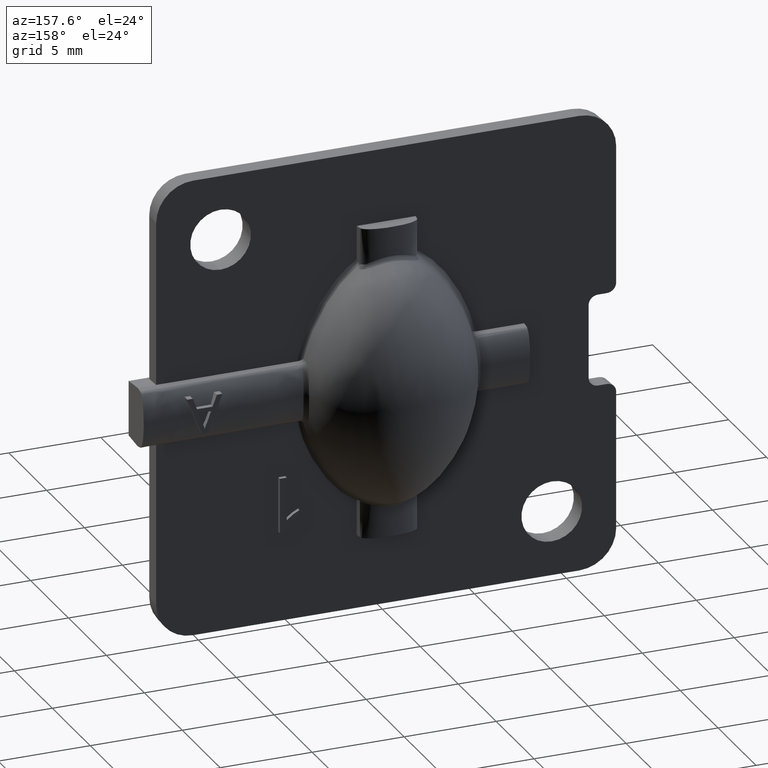
[diagram: clean part render]
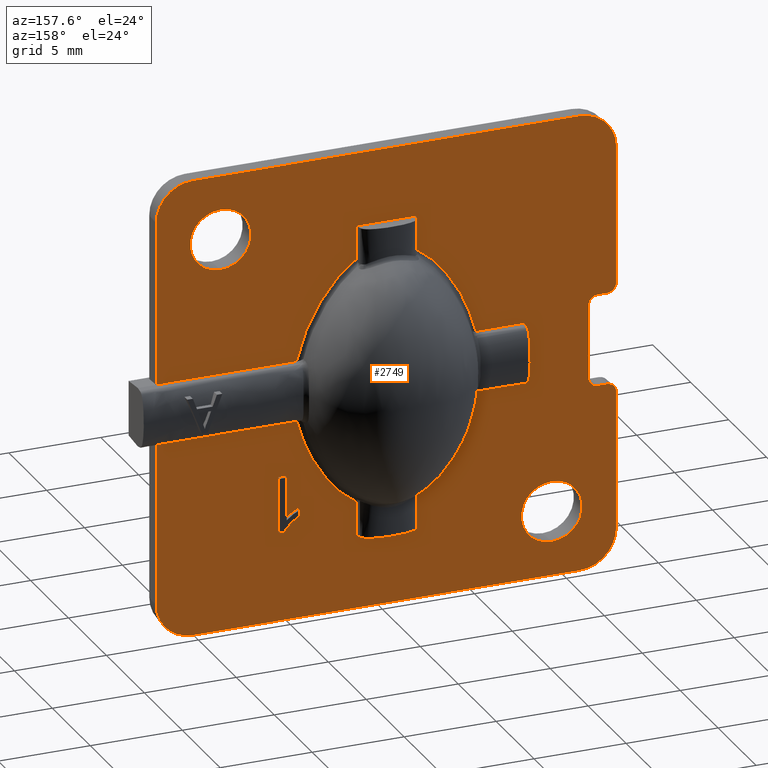
[diagram: same view with one face highlighted and labeled with its STEP entity id]
A machine part, auxiliary view. The second image highlights one B-rep face of the part: STEP entity #2749.
In plain terms, the highlighted planar face has unit normal (0, 1, 0).
Its self-contained STEP definition (entity closure, byte-faithful):
#39 = CARTESIAN_POINT ( 'NONE',  ( -2.602536842732964000, 0.4999999999999995600, 5.873035864664191600 ) ) ;
#52 = CARTESIAN_POINT ( 'NONE',  ( 5.615865384615384300, 0.4999999999999998900, -7.599999999999992500 ) ) ;
#117 = LINE ( 'NONE', #5742, #4562 ) ;
#129 = EDGE_CURVE ( 'NONE', #1775, #3192, #5654, .T. ) ;
#145 = VERTEX_POINT ( 'NONE', #4156 ) ;
#150 = LINE ( 'NONE', #4916, #1559 ) ;
#153 = ORIENTED_EDGE ( 'NONE', *, *, #7168, .T. ) ;
#159 = CARTESIAN_POINT ( 'NONE',  ( 4.786538461538461900, 0.4999999999999994400, -6.495432692307684200 ) ) ;
#174 = DIRECTION ( 'NONE',  ( 0.0000000000000000000, 0.0000000000000000000, 1.000000000000000000 ) ) ;
#243 = VERTEX_POINT ( 'NONE', #4205 ) ;
#256 = CARTESIAN_POINT ( 'NONE',  ( 4.593979783730608400, 0.4999999999999970600, -2.605275337363731000 ) ) ;
#260 = EDGE_CURVE ( 'NONE', #776, #1789, #4118, .T. ) ;
#320 = ORIENTED_EDGE ( 'NONE', *, *, #7146, .F. ) ;
#325 = VECTOR ( 'NONE', #4974, 1000.000000000000000 ) ;
#336 = CARTESIAN_POINT ( 'NONE',  ( 3.431360263102917400, 0.5000000000000005600, 4.889773173243647800 ) ) ;
#337 = ORIENTED_EDGE ( 'NONE', *, *, #6143, .T. ) ;
#350 = CARTESIAN_POINT ( 'NONE',  ( 12.49999999999999600, 0.5000000000000000000, 1.604986396231104000 ) ) ;
#358 = CARTESIAN_POINT ( 'NONE',  ( -3.122102073431732200, 0.5000000000000004400, -5.307334652412914800 ) ) ;
#418 = CARTESIAN_POINT ( 'NONE',  ( -10.50000000000000200, 0.4999999999999998900, 12.50000000000000400 ) ) ;
#466 = ORIENTED_EDGE ( 'NONE', *, *, #2699, .T. ) ;
#480 = VERTEX_POINT ( 'NONE', #1051 ) ;
#483 = CARTESIAN_POINT ( 'NONE',  ( 5.478846153846153500, 0.4999999999999998900, -6.937740384615376700 ) ) ;
#493 = CIRCLE ( 'NONE', #3552, 1.650000000000000400 ) ;
#527 = CARTESIAN_POINT ( 'NONE',  ( 4.870740075160027200, 0.4999999999999036300, -6.893363881385036000 ) ) ;
#530 = VECTOR ( 'NONE', #2934, 1000.000000000000000 ) ;
#554 = CARTESIAN_POINT ( 'NONE',  ( 5.593817402699381900, 0.4999999999999345000, -7.558027716324799500 ) ) ;
#580 = DIRECTION ( 'NONE',  ( 0.0000000000000000000, 1.000000000000000000, 0.0000000000000000000 ) ) ;
#585 = DIRECTION ( 'NONE',  ( 0.0000000000000000000, -1.000000000000000000, 0.0000000000000000000 ) ) ;
#654 = CARTESIAN_POINT ( 'NONE',  ( -3.433844317318849500, 0.4999999999999996700, 4.886053363695464400 ) ) ;
#712 = VERTEX_POINT ( 'NONE', #6948 ) ;
#758 = CIRCLE ( 'NONE', #5262, 1.999999999999998200 ) ;
#766 = VECTOR ( 'NONE', #4445, 1000.000000000000000 ) ;
#776 = VERTEX_POINT ( 'NONE', #483 ) ;
#785 = CIRCLE ( 'NONE', #5835, 2.000000000000000000 ) ;
#812 = EDGE_CURVE ( 'NONE', #6496, #2055, #6607, .T. ) ;
#823 = ORIENTED_EDGE ( 'NONE', *, *, #5092, .T. ) ;
#828 = CARTESIAN_POINT ( 'NONE',  ( 4.786538461538461900, 0.4999999999999994400, -6.495432692307684200 ) ) ;
#855 = CARTESIAN_POINT ( 'NONE',  ( 4.868196156061162400, 0.5000000000000000000, -1.604986396231104000 ) ) ;
#865 = VECTOR ( 'NONE', #6635, 1000.000000000000000 ) ;
#868 = VERTEX_POINT ( 'NONE', #4056 ) ;
#900 = CARTESIAN_POINT ( 'NONE',  ( 12.49999999999999500, 0.5000000000000000000, -1.604986396231104000 ) ) ;
#901 = CARTESIAN_POINT ( 'NONE',  ( 4.850223763252536500, 0.4999999999999917800, -6.521629043489609100 ) ) ;
#929 = CARTESIAN_POINT ( 'NONE',  ( 2.600703894446286600, 0.5000000000000000000, 5.874902348171319000 ) ) ;
#947 = CARTESIAN_POINT ( 'NONE',  ( -2.418178592225766400, 0.5000000000000003300, -6.053390408300303200 ) ) ;
#957 = EDGE_CURVE ( 'NONE', #6505, #868, #3295, .T. ) ;
#962 = VERTEX_POINT ( 'NONE', #2583 ) ;
#1051 = CARTESIAN_POINT ( 'NONE',  ( -1.604986396231104800, 0.4999999999999993300, -8.500000000000000000 ) ) ;
#1060 = CARTESIAN_POINT ( 'NONE',  ( 4.913077966838161000, 0.4999999999999954500, -6.549888068917654000 ) ) ;
#1070 = CARTESIAN_POINT ( 'NONE',  ( 12.49999999999999500, 0.4999999999999998900, -10.50000000000000500 ) ) ;
#1074 = LINE ( 'NONE', #6479, #6876 ) ;
#1112 = DIRECTION ( 'NONE',  ( 0.0000000000000000000, 0.0000000000000000000, 1.000000000000000000 ) ) ;
#1158 = CARTESIAN_POINT ( 'NONE',  ( 1.604986396231104400, 0.4999999999999998900, -8.500000000000000000 ) ) ;
#1168 = VECTOR ( 'NONE', #2792, 1000.000000000000000 ) ;
#1176 = CARTESIAN_POINT ( 'NONE',  ( 10.49999999999999600, 0.4999999999999998900, 10.49999999999999800 ) ) ;
#1201 = CARTESIAN_POINT ( 'NONE',  ( -8.999999999999998200, 0.4999999999999998900, -10.65000000000000200 ) ) ;
#1220 = CARTESIAN_POINT ( 'NONE',  ( 13.50000000000000000, 0.5000000000000000000, -1.604986396231104000 ) ) ;
#1231 = EDGE_CURVE ( 'NONE', #145, #3323, #4479, .T. ) ;
#1236 = CARTESIAN_POINT ( 'NONE',  ( -12.50000000000000400, 0.4999999999999998900, -3.000000000000036400 ) ) ;
#1240 = CARTESIAN_POINT ( 'NONE',  ( 5.034572877774978700, 0.4999999999999880700, -6.614728933716224700 ) ) ;
#1248 = CARTESIAN_POINT ( 'NONE',  ( -4.204061411503757600, 0.4999999999999945000, 3.555514557773973300 ) ) ;
#1249 = VERTEX_POINT ( 'NONE', #3016 ) ;
#1265 = DIRECTION ( 'NONE',  ( 1.000000000000000000, 0.0000000000000000000, 0.0000000000000000000 ) ) ;
#1281 = EDGE_LOOP ( 'NONE', ( #1970, #6537 ) ) ;
#1292 = DIRECTION ( 'NONE',  ( -0.0000000000000000000, -1.000000000000000000, -0.0000000000000000000 ) ) ;
#1301 = CARTESIAN_POINT ( 'NONE',  ( 5.094046360152249900, 0.4999999999999916700, -6.649479031105513200 ) ) ;
#1324 = CARTESIAN_POINT ( 'NONE',  ( -12.00000000000000400, 0.4999999999999998900, -2.500000000000036400 ) ) ;
#1331 = CARTESIAN_POINT ( 'NONE',  ( 5.210985550617957400, 0.4999999999999916700, -6.722223466086911800 ) ) ;
#1349 = CARTESIAN_POINT ( 'NONE',  ( 5.268047160415910900, 0.4999999999999954500, -6.760851100722543800 ) ) ;
#1355 = CARTESIAN_POINT ( 'NONE',  ( 5.350275886953714800, 0.4999999999999899500, -6.823385387114017300 ) ) ;
#1385 = EDGE_CURVE ( 'NONE', #6997, #3454, #5256, .T. ) ;
#1413 = CARTESIAN_POINT ( 'NONE',  ( 4.786538461538461900, 0.4999999999999998900, -6.495432692307684200 ) ) ;
#1427 = CARTESIAN_POINT ( 'NONE',  ( 5.377272708228106000, 0.4999999999999937300, -6.844812584039667400 ) ) ;
#1428 = AXIS2_PLACEMENT_3D ( 'NONE', #6431, #3149, #6976 ) ;
#1432 = CARTESIAN_POINT ( 'NONE',  ( 12.49999999999999500, 0.4999999999999998900, 10.49999999999999800 ) ) ;
#1457 = CARTESIAN_POINT ( 'NONE',  ( 5.478846153846153500, 0.4999999999999998900, -6.937740384615376700 ) ) ;
#1461 = CIRCLE ( 'NONE', #5143, 2.000000000000000000 ) ;
#1493 = EDGE_CURVE ( 'NONE', #5950, #1535, #6190, .T. ) ;
#1514 = EDGE_CURVE ( 'NONE', #6724, #5516, #117, .T. ) ;
#1532 = CARTESIAN_POINT ( 'NONE',  ( 10.49999999999999600, 0.4999999999999998900, -10.50000000000000500 ) ) ;
#1535 = VERTEX_POINT ( 'NONE', #3550 ) ;
#1539 = CARTESIAN_POINT ( 'NONE',  ( 2.030140906998134200, 0.4999999999999992800, 6.387924370799556300 ) ) ;
#1557 = CARTESIAN_POINT ( 'NONE',  ( -1.825621187452277400, 0.4999999999999998900, -6.543343890195993500 ) ) ;
#1559 = VECTOR ( 'NONE', #5412, 1000.000000000000000 ) ;
#1561 = ORIENTED_EDGE ( 'NONE', *, *, #5704, .T. ) ;
#1599 = FACE_BOUND ( 'NONE', #2381, .T. ) ;
#1609 = CARTESIAN_POINT ( 'NONE',  ( 500000.0000000000600, 0.5000000000000000000, 1.604986396231104000 ) ) ;
#1668 = DIRECTION ( 'NONE',  ( 0.0000000000000000000, 1.000000000000000000, 0.0000000000000000000 ) ) ;
#1775 = VERTEX_POINT ( 'NONE', #6410 ) ;
#1779 = DIRECTION ( 'NONE',  ( 8.673617379884027600E-016, -0.0000000000000000000, 1.000000000000000000 ) ) ;
#1789 = VERTEX_POINT ( 'NONE', #159 ) ;
#1794 = DIRECTION ( 'NONE',  ( 0.0000000000000000000, 0.0000000000000000000, 1.000000000000000000 ) ) ;
#1803 = ORIENTED_EDGE ( 'NONE', *, *, #4434, .T. ) ;
#1804 = ORIENTED_EDGE ( 'NONE', *, *, #6078, .T. ) ;
#1839 = CARTESIAN_POINT ( 'NONE',  ( -1.826478019060713900, 0.5000000000000001100, 6.542806246505388200 ) ) ;
#1840 = LINE ( 'NONE', #5401, #2032 ) ;
#1859 = CARTESIAN_POINT ( 'NONE',  ( 9.000000000000000000, 0.4999999999999998900, 9.000000000000000000 ) ) ;
#1866 = CARTESIAN_POINT ( 'NONE',  ( -4.752806634847363700, 0.4999999999999997800, 2.110415589788388900 ) ) ;
#1893 = B_SPLINE_CURVE_WITH_KNOTS ( 'NONE', 3,
 ( #4658, #1839, #6842, #3571, #39, #4112, #654, #4685, #1248, #5239, #1866, #5793 ),
 .UNSPECIFIED., .F., .F.,
 ( 4, 2, 2, 2, 2, 4 ),
 ( 4.640049620802642200E-014, 0.0007676553964865530200, 0.001535310792926705600, 0.003070621585807010000, 0.004605932378687314200, 0.006141243171567618000 ),
 .UNSPECIFIED. ) ;
#1912 = VECTOR ( 'NONE', #3529, 1000.000000000000000 ) ;
#1940 = CARTESIAN_POINT ( 'NONE',  ( 5.454056397141731500, 0.4999999999999917800, -6.913833555746709400 ) ) ;
#1944 = VERTEX_POINT ( 'NONE', #350 ) ;
#1945 = ORIENTED_EDGE ( 'NONE', *, *, #2976, .T. ) ;
#1952 = CARTESIAN_POINT ( 'NONE',  ( 1.604986396231104400, 0.4999999999999998900, -6.681766774022435100 ) ) ;
#1959 = CARTESIAN_POINT ( 'NONE',  ( 5.429247896999013000, 0.4999999999999900100, -6.889947073874952600 ) ) ;
#1966 = CARTESIAN_POINT ( 'NONE',  ( -10.50000000000000200, 0.4999999999999998900, 12.50000000000000400 ) ) ;
#1970 = ORIENTED_EDGE ( 'NONE', *, *, #2415, .T. ) ;
#2024 = LINE ( 'NONE', #2386, #6291 ) ;
#2032 = VECTOR ( 'NONE', #2625, 1000.000000000000000 ) ;
#2046 = CARTESIAN_POINT ( 'NONE',  ( 2.032093195035161100, 0.4999999999999998900, -6.386414261580100100 ) ) ;
#2055 = VERTEX_POINT ( 'NONE', #5593 ) ;
#2120 = LINE ( 'NONE', #5163, #4941 ) ;
#2139 = DIRECTION ( 'NONE',  ( 0.0000000000000000000, 0.0000000000000000000, 1.000000000000000000 ) ) ;
#2144 = CARTESIAN_POINT ( 'NONE',  ( 1.604986396231104400, 0.4999999999999998900, 6.681766801648336700 ) ) ;
#2162 = CARTESIAN_POINT ( 'NONE',  ( -1.604986396231104400, 0.4999999999999998900, 8.500000000000000000 ) ) ;
#2167 = EDGE_CURVE ( 'NONE', #6505, #3805, #3524, .T. ) ;
#2230 = DIRECTION ( 'NONE',  ( -0.0000000000000000000, -0.0000000000000000000, -1.000000000000000000 ) ) ;
#2271 = EDGE_CURVE ( 'NONE', #5982, #776, #7032, .T. ) ;
#2287 = VERTEX_POINT ( 'NONE', #2403 ) ;
#2297 = EDGE_CURVE ( 'NONE', #2974, #5950, #2804, .T. ) ;
#2301 = VECTOR ( 'NONE', #1112, 1000.000000000000000 ) ;
#2323 = CARTESIAN_POINT ( 'NONE',  ( 5.112722543617461000, 0.4999999999999087400, -7.042155283481200500 ) ) ;
#2324 = B_SPLINE_CURVE_WITH_KNOTS ( 'NONE', 3,
 ( #2696, #6564, #3280, #7118, #3832, #336, #4382, #929, #4957, #1539, #5498, #2144 ),
 .UNSPECIFIED., .F., .F.,
 ( 4, 2, 2, 2, 2, 4 ),
 ( 5.365532531785023200E-014, 0.001539940560645864400, 0.003079881121238073400, 0.004619821681830282000, 0.005389791962126386900, 0.006159762242422491000 ),
 .UNSPECIFIED. ) ;
#2342 = ORIENTED_EDGE ( 'NONE', *, *, #3814, .T. ) ;
#2370 = ORIENTED_EDGE ( 'NONE', *, *, #7024, .T. ) ;
#2381 = EDGE_LOOP ( 'NONE', ( #3983, #6509, #5112, #7338, #337, #6974, #3761 ) ) ;
#2386 = CARTESIAN_POINT ( 'NONE',  ( -500000.0000000000600, 0.5000000000000000000, 1.604986396231104000 ) ) ;
#2399 = DIRECTION ( 'NONE',  ( -1.000000000000000000, -0.0000000000000000000, 3.304235192336775500E-016 ) ) ;
#2403 = CARTESIAN_POINT ( 'NONE',  ( -4.868196155882742500, 0.5000000000000000000, 1.604986396231104000 ) ) ;
#2415 = EDGE_CURVE ( 'NONE', #5965, #6157, #493, .T. ) ;
#2421 = ORIENTED_EDGE ( 'NONE', *, *, #1514, .T. ) ;
#2428 = DIRECTION ( 'NONE',  ( -0.0000000000000000000, -1.000000000000000000, -0.0000000000000000000 ) ) ;
#2443 = DIRECTION ( 'NONE',  ( 0.0000000000000000000, 0.0000000000000000000, -1.000000000000000000 ) ) ;
#2560 = VECTOR ( 'NONE', #6822, 1000.000000000000000 ) ;
#2583 = CARTESIAN_POINT ( 'NONE',  ( 5.863461538461535800, 0.4999999999999998900, -7.599999999999993400 ) ) ;
#2612 = CARTESIAN_POINT ( 'NONE',  ( -8.999999999999998200, 0.4999999999999998900, -7.350000000000000500 ) ) ;
#2625 = DIRECTION ( 'NONE',  ( -1.000000000000000000, 0.0000000000000000000, 0.0000000000000000000 ) ) ;
#2632 = CARTESIAN_POINT ( 'NONE',  ( 2.603623329385534600, 0.4999999999999993300, -5.871946985160218600 ) ) ;
#2633 = DIRECTION ( 'NONE',  ( 2.312964634635753800E-016, 0.0000000000000000000, 1.000000000000000000 ) ) ;
#2696 = CARTESIAN_POINT ( 'NONE',  ( 4.868196446352612800, 0.5000000000000000000, 1.604986396231104000 ) ) ;
#2697 = ORIENTED_EDGE ( 'NONE', *, *, #2297, .T. ) ;
#2699 = EDGE_CURVE ( 'NONE', #6212, #6724, #758, .T. ) ;
#2749 = ADVANCED_FACE ( 'NONE', ( #1599, #5926, #2987, #4456 ), #7239, .T. ) ;
#2769 = VERTEX_POINT ( 'NONE', #6725 ) ;
#2782 = CARTESIAN_POINT ( 'NONE',  ( -1.604986396231104800, 0.4999999999999993300, -500000.0000000000600 ) ) ;
#2792 = DIRECTION ( 'NONE',  ( -1.000000000000000000, -0.0000000000000000000, -0.0000000000000000000 ) ) ;
#2804 = CIRCLE ( 'NONE', #3322, 0.5000000000000004400 ) ;
#2842 = CIRCLE ( 'NONE', #1428, 1.650000000000000400 ) ;
#2854 = CIRCLE ( 'NONE', #5878, 0.4999999999999995600 ) ;
#2869 = DIRECTION ( 'NONE',  ( -8.260587980841936300E-017, -0.0000000000000000000, -1.000000000000000000 ) ) ;
#2873 = AXIS2_PLACEMENT_3D ( 'NONE', #4053, #585, #4612 ) ;
#2909 = ORIENTED_EDGE ( 'NONE', *, *, #5938, .F. ) ;
#2913 = CARTESIAN_POINT ( 'NONE',  ( 5.331050884147971100, 0.4999999999999036300, -7.224103959031264600 ) ) ;
#2930 = ORIENTED_EDGE ( 'NONE', *, *, #957, .T. ) ;
#2934 = DIRECTION ( 'NONE',  ( -1.000000000000000000, 0.0000000000000000000, 0.0000000000000000000 ) ) ;
#2935 = VECTOR ( 'NONE', #2869, 1000.000000000000000 ) ;
#2937 = DIRECTION ( 'NONE',  ( 0.0000000000000000000, 1.000000000000000000, 0.0000000000000000000 ) ) ;
#2974 = VERTEX_POINT ( 'NONE', #5477 ) ;
#2976 = EDGE_CURVE ( 'NONE', #712, #3454, #150, .T. ) ;
#2987 = FACE_OUTER_BOUND ( 'NONE', #6815, .T. ) ;
#2993 = DIRECTION ( 'NONE',  ( 0.0000000000000000000, 0.0000000000000000000, -1.000000000000000000 ) ) ;
#2997 = CARTESIAN_POINT ( 'NONE',  ( 5.478846153846153500, 0.4999999999999998900, -4.599999999999992500 ) ) ;
#3016 = CARTESIAN_POINT ( 'NONE',  ( -1.604986396231104800, 0.4999999999999993300, -6.681766798692478900 ) ) ;
#3036 = VERTEX_POINT ( 'NONE', #418 ) ;
#3097 = CARTESIAN_POINT ( 'NONE',  ( -4.868196446352612800, 0.5000000000000000000, -1.604986396231104000 ) ) ;
#3116 = DIRECTION ( 'NONE',  ( 0.0000000000000000000, 1.000000000000000000, 0.0000000000000000000 ) ) ;
#3119 = EDGE_CURVE ( 'NONE', #6735, #2769, #6982, .T. ) ;
#3124 = DIRECTION ( 'NONE',  ( 0.0000000000000000000, -1.000000000000000000, 0.0000000000000000000 ) ) ;
#3149 = DIRECTION ( 'NONE',  ( 0.0000000000000000000, -1.000000000000000000, 0.0000000000000000000 ) ) ;
#3172 = DIRECTION ( 'NONE',  ( 0.0000000000000000000, 0.0000000000000000000, -1.000000000000000000 ) ) ;
#3192 = VERTEX_POINT ( 'NONE', #4209 ) ;
#3203 = LINE ( 'NONE', #6129, #6466 ) ;
#3217 = CARTESIAN_POINT ( 'NONE',  ( 3.435620280224831000, 0.4999999999999995600, -4.883527946134523600 ) ) ;
#3218 = EDGE_CURVE ( 'NONE', #3036, #145, #5365, .T. ) ;
#3249 = CARTESIAN_POINT ( 'NONE',  ( -10.50000000000000500, 0.4999999999999998900, -12.49999999999999800 ) ) ;
#3278 = AXIS2_PLACEMENT_3D ( 'NONE', #5069, #1668, #5607 ) ;
#3280 = CARTESIAN_POINT ( 'NONE',  ( 4.596356834775615000, 0.4999999999999997800, 2.598727141043621000 ) ) ;
#3295 = B_SPLINE_CURVE_WITH_KNOTS ( 'NONE', 3,
 ( #4863, #6972, #2046, #5954, #2632, #6498, #3217, #7050, #3763, #256, #4315, #855 ),
 .UNSPECIFIED., .F., .F.,
 ( 4, 2, 2, 2, 2, 4 ),
 ( 4.725572598014621800E-014, 0.0007684751438846687400, 0.001536950287722081900, 0.003073900575396907700, 0.004610850863071733500, 0.006147801150746559800 ),
 .UNSPECIFIED. ) ;
#3299 = CARTESIAN_POINT ( 'NONE',  ( -4.207953043333998400, 0.4999999999999998900, -3.547229655579168000 ) ) ;
#3322 = AXIS2_PLACEMENT_3D ( 'NONE', #5770, #2428, #6305 ) ;
#3323 = VERTEX_POINT ( 'NONE', #1432 ) ;
#3331 = EDGE_CURVE ( 'NONE', #3805, #480, #1840, .T. ) ;
#3441 = VERTEX_POINT ( 'NONE', #900 ) ;
#3454 = VERTEX_POINT ( 'NONE', #2162 ) ;
#3459 = LINE ( 'NONE', #4433, #325 ) ;
#3463 = DIRECTION ( 'NONE',  ( -1.000000000000000000, -0.0000000000000000000, -0.0000000000000000000 ) ) ;
#3475 = CARTESIAN_POINT ( 'NONE',  ( 5.489603480489392100, 0.4999999999999010200, -7.400041894972491500 ) ) ;
#3504 = CARTESIAN_POINT ( 'NONE',  ( -12.00000000000000400, 0.4999999999999998900, 2.499999999999966700 ) ) ;
#3524 = LINE ( 'NONE', #7181, #766 ) ;
#3529 = DIRECTION ( 'NONE',  ( -1.000000000000000000, -0.0000000000000000000, -8.673617379883998000E-016 ) ) ;
#3550 = CARTESIAN_POINT ( 'NONE',  ( -12.00000000000000400, 0.4999999999999998900, 2.499999999999966700 ) ) ;
#3551 = CARTESIAN_POINT ( 'NONE',  ( -12.50000000000000500, 0.4999999999999998900, 2.999999999999967100 ) ) ;
#3552 = AXIS2_PLACEMENT_3D ( 'NONE', #6406, #3124, #6947 ) ;
#3571 = CARTESIAN_POINT ( 'NONE',  ( -2.419654859141026300, 0.4999999999999995600, 6.052018436979405000 ) ) ;
#3596 = ORIENTED_EDGE ( 'NONE', *, *, #7272, .T. ) ;
#3608 = CARTESIAN_POINT ( 'NONE',  ( -7.500000000000000000, 0.5000000000000000000, 1.604986396231104000 ) ) ;
#3636 = LINE ( 'NONE', #4048, #530 ) ;
#3693 = DIRECTION ( 'NONE',  ( 0.0000000000000000000, 1.000000000000000000, 0.0000000000000000000 ) ) ;
#3706 = CARTESIAN_POINT ( 'NONE',  ( 1.604986396231104400, 0.4999999999999998900, 6.681766801648336700 ) ) ;
#3716 = EDGE_CURVE ( 'NONE', #5382, #712, #6723, .T. ) ;
#3761 = ORIENTED_EDGE ( 'NONE', *, *, #3934, .T. ) ;
#3763 = CARTESIAN_POINT ( 'NONE',  ( 4.205318067845241500, 0.4999999999999971700, -3.552732268703693700 ) ) ;
#3765 = ORIENTED_EDGE ( 'NONE', *, *, #1231, .T. ) ;
#3785 = ORIENTED_EDGE ( 'NONE', *, *, #1493, .T. ) ;
#3792 = EDGE_CURVE ( 'NONE', #7199, #5982, #3636, .T. ) ;
#3805 = VERTEX_POINT ( 'NONE', #1158 ) ;
#3814 = EDGE_CURVE ( 'NONE', #7164, #2974, #2120, .T. ) ;
#3821 = CARTESIAN_POINT ( 'NONE',  ( 10.49999999999999500, 0.4999999999999998900, -12.50000000000000400 ) ) ;
#3832 = CARTESIAN_POINT ( 'NONE',  ( 3.972434500499407900, 0.5000000000000004400, 4.013026375853872500 ) ) ;
#3851 = CARTESIAN_POINT ( 'NONE',  ( -3.432191345967528400, 0.4999999999999993300, -4.888718577357272100 ) ) ;
#3905 = VERTEX_POINT ( 'NONE', #1236 ) ;
#3934 = EDGE_CURVE ( 'NONE', #243, #962, #7333, .T. ) ;
#3969 = VERTEX_POINT ( 'NONE', #3608 ) ;
#3977 = VECTOR ( 'NONE', #2633, 1000.000000000000000 ) ;
#3983 = ORIENTED_EDGE ( 'NONE', *, *, #4910, .T. ) ;
#4014 = CARTESIAN_POINT ( 'NONE',  ( -1.604986396231104800, 0.4999999999999993300, 6.681766771066577300 ) ) ;
#4022 = ORIENTED_EDGE ( 'NONE', *, *, #5294, .T. ) ;
#4026 = CARTESIAN_POINT ( 'NONE',  ( 5.571511437538547700, 0.4999999999999036300, -7.516206875983633600 ) ) ;
#4048 = CARTESIAN_POINT ( 'NONE',  ( 5.863461538461537600, 0.4999999999999998900, -4.599999999999992500 ) ) ;
#4049 = CARTESIAN_POINT ( 'NONE',  ( -12.00000000000000400, 0.4999999999999998900, -3.000000000000036400 ) ) ;
#4053 = CARTESIAN_POINT ( 'NONE',  ( -8.999999999999998200, 0.4999999999999998900, -9.000000000000001800 ) ) ;
#4056 = CARTESIAN_POINT ( 'NONE',  ( 4.868196156061162400, 0.5000000000000000000, -1.604986396231104000 ) ) ;
#4069 = AXIS2_PLACEMENT_3D ( 'NONE', #1859, #5788, #2443 ) ;
#4112 = CARTESIAN_POINT ( 'NONE',  ( -3.122675472347308000, 0.4999999999999994400, 5.306537978654932700 ) ) ;
#4118 = B_SPLINE_CURVE_WITH_KNOTS ( 'NONE', 3,
 ( #1457, #1940, #1959, #1427, #1355, #1349, #1331, #1301, #1240, #1060, #901, #828 ),
 .UNSPECIFIED., .F., .F.,
 ( 4, 2, 2, 2, 2, 4 ),
 ( 0.0000000000000000000, 0.0001031765078781489200, 0.0002063530157562978400, 0.0004127060315125956900, 0.0006190590472688935900, 0.0008254120630251913800 ),
 .UNSPECIFIED. ) ;
#4135 = VECTOR ( 'NONE', #3172, 1000.000000000000000 ) ;
#4156 = CARTESIAN_POINT ( 'NONE',  ( 10.49999999999999800, 0.4999999999999998900, 12.49999999999999500 ) ) ;
#4205 = CARTESIAN_POINT ( 'NONE',  ( 5.615865384615385200, 0.4999999999999994400, -7.599999999999993400 ) ) ;
#4209 = CARTESIAN_POINT ( 'NONE',  ( -11.50000000000000400, 0.4999999999999998900, -2.500000000000036900 ) ) ;
#4210 = DIRECTION ( 'NONE',  ( 1.000000000000000000, 0.0000000000000000000, -8.673617379884027600E-016 ) ) ;
#4215 = ORIENTED_EDGE ( 'NONE', *, *, #812, .F. ) ;
#4228 = LINE ( 'NONE', #1609, #1168 ) ;
#4296 = CARTESIAN_POINT ( 'NONE',  ( -12.50000000000000500, 0.4999999999999998900, -10.50000000000000000 ) ) ;
#4315 = CARTESIAN_POINT ( 'NONE',  ( 4.752664215908633400, 0.5000000000000000000, -2.111039416817539900 ) ) ;
#4318 = LINE ( 'NONE', #4296, #3977 ) ;
#4339 = ORIENTED_EDGE ( 'NONE', *, *, #5073, .T. ) ;
#4375 = CARTESIAN_POINT ( 'NONE',  ( -4.752949128063273900, 0.4999999999999998900, -2.109793002324889400 ) ) ;
#4382 = CARTESIAN_POINT ( 'NONE',  ( 3.121377361931379400, 0.4999999999999998900, 5.308210513774777300 ) ) ;
#4387 = ORIENTED_EDGE ( 'NONE', *, *, #3331, .F. ) ;
#4403 = CARTESIAN_POINT ( 'NONE',  ( -2.601175474823939700, 0.5000000000000004400, -5.874432519355918800 ) ) ;
#4409 = LINE ( 'NONE', #5015, #7155 ) ;
#4433 = CARTESIAN_POINT ( 'NONE',  ( 5.863461538461537600, 0.4999999999999998900, -7.599999999999992500 ) ) ;
#4434 = EDGE_CURVE ( 'NONE', #1249, #480, #3203, .T. ) ;
#4445 = DIRECTION ( 'NONE',  ( -0.0000000000000000000, -0.0000000000000000000, -1.000000000000000000 ) ) ;
#4456 = FACE_BOUND ( 'NONE', #4942, .T. ) ;
#4479 = CIRCLE ( 'NONE', #5759, 1.999999999999998200 ) ;
#4490 = CARTESIAN_POINT ( 'NONE',  ( 4.868196446352612800, 0.5000000000000000000, 1.604986396231104000 ) ) ;
#4562 = VECTOR ( 'NONE', #2399, 1000.000000000000000 ) ;
#4570 = VERTEX_POINT ( 'NONE', #5597 ) ;
#4581 = CARTESIAN_POINT ( 'NONE',  ( 5.615865384615385200, 0.4999999999999994400, -7.599999999999993400 ) ) ;
#4599 = EDGE_CURVE ( 'NONE', #2055, #3969, #7063, .T. ) ;
#4604 = DIRECTION ( 'NONE',  ( 0.0000000000000000000, 0.0000000000000000000, 1.000000000000000000 ) ) ;
#4612 = DIRECTION ( 'NONE',  ( 0.0000000000000000000, 0.0000000000000000000, -1.000000000000000000 ) ) ;
#4614 = B_SPLINE_CURVE_WITH_KNOTS ( 'NONE', 3,
 ( #6039, #4375, #6579, #3299, #7137, #3851, #358, #4403, #947, #4969, #1557, #5515 ),
 .UNSPECIFIED., .F., .F.,
 ( 4, 2, 2, 2, 2, 4 ),
 ( 3.174896010992729300E-015, 0.001537254483109000800, 0.003074508966214826600, 0.004611763449320652400, 0.005380390690873563700, 0.006149017932426476000 ),
 .UNSPECIFIED. ) ;
#4621 = ORIENTED_EDGE ( 'NONE', *, *, #7300, .T. ) ;
#4639 = ORIENTED_EDGE ( 'NONE', *, *, #3716, .T. ) ;
#4643 = CARTESIAN_POINT ( 'NONE',  ( -11.50000000000000200, 0.4999999999999998900, 2.499999999999967100 ) ) ;
#4658 = CARTESIAN_POINT ( 'NONE',  ( -1.604986396231104800, 0.4999999999999993300, 6.681766771066577300 ) ) ;
#4685 = CARTESIAN_POINT ( 'NONE',  ( -3.972929825219564400, 0.4999999999999997800, 4.011915374075217100 ) ) ;
#4721 = CARTESIAN_POINT ( 'NONE',  ( -11.50000000000000400, 0.4999999999999998900, -2.000000000000036400 ) ) ;
#4784 = DIRECTION ( 'NONE',  ( 1.000000000000000000, 0.0000000000000000000, -4.130293990420969900E-016 ) ) ;
#4795 = VERTEX_POINT ( 'NONE', #5449 ) ;
#4840 = EDGE_CURVE ( 'NONE', #6963, #5382, #2324, .T. ) ;
#4863 = CARTESIAN_POINT ( 'NONE',  ( 1.604986396231104400, 0.4999999999999998900, -6.681766774022435100 ) ) ;
#4910 = EDGE_CURVE ( 'NONE', #962, #7199, #3459, .T. ) ;
#4916 = CARTESIAN_POINT ( 'NONE',  ( 2.168404344971008900E-015, 0.4999999999999998900, 8.500000000000000000 ) ) ;
#4941 = VECTOR ( 'NONE', #1779, 1000.000000000000000 ) ;
#4942 = EDGE_LOOP ( 'NONE', ( #6987, #1804 ) ) ;
#4957 = CARTESIAN_POINT ( 'NONE',  ( 2.417796191609650400, 0.4999999999999992800, 6.053741275003233100 ) ) ;
#4969 = CARTESIAN_POINT ( 'NONE',  ( -2.030336902114616900, 0.5000000000000003300, -6.387776578960386000 ) ) ;
#4974 = DIRECTION ( 'NONE',  ( 0.0000000000000000000, 0.0000000000000000000, 1.000000000000000000 ) ) ;
#5015 = CARTESIAN_POINT ( 'NONE',  ( 12.49999999999999500, 0.4999999999999998900, -10.50000000000000500 ) ) ;
#5049 = EDGE_CURVE ( 'NONE', #4795, #243, #5676, .T. ) ;
#5069 = CARTESIAN_POINT ( 'NONE',  ( -12.00000000000000400, 0.4999999999999998900, 2.999999999999967100 ) ) ;
#5073 = EDGE_CURVE ( 'NONE', #5808, #3036, #1461, .T. ) ;
#5092 = EDGE_CURVE ( 'NONE', #3905, #1775, #5962, .T. ) ;
#5103 = AXIS2_PLACEMENT_3D ( 'NONE', #6401, #3116, #6942 ) ;
#5112 = ORIENTED_EDGE ( 'NONE', *, *, #2271, .T. ) ;
#5116 = CARTESIAN_POINT ( 'NONE',  ( 4.786538461538460100, 0.4999999999999998900, -6.849999999999992500 ) ) ;
#5118 = ORIENTED_EDGE ( 'NONE', *, *, #4599, .F. ) ;
#5143 = AXIS2_PLACEMENT_3D ( 'NONE', #6233, #2937, #6772 ) ;
#5163 = CARTESIAN_POINT ( 'NONE',  ( -11.00000000000000200, 0.4999999999999998900, 1.999999999999967100 ) ) ;
#5164 = ORIENTED_EDGE ( 'NONE', *, *, #5540, .T. ) ;
#5181 = DIRECTION ( 'NONE',  ( 0.0000000000000000000, 1.000000000000000000, 0.0000000000000000000 ) ) ;
#5219 = CARTESIAN_POINT ( 'NONE',  ( -11.00000000000000400, 0.4999999999999998900, -2.000000000000036900 ) ) ;
#5239 = CARTESIAN_POINT ( 'NONE',  ( -4.593725650440091200, 0.4999999999999946200, 2.606174863178192700 ) ) ;
#5256 = LINE ( 'NONE', #2782, #865 ) ;
#5262 = AXIS2_PLACEMENT_3D ( 'NONE', #1532, #5495, #2139 ) ;
#5278 = DIRECTION ( 'NONE',  ( 0.0000000000000000000, 0.0000000000000000000, 1.000000000000000000 ) ) ;
#5294 = EDGE_CURVE ( 'NONE', #3192, #7164, #2854, .T. ) ;
#5353 = CIRCLE ( 'NONE', #5103, 0.5000000000000013300 ) ;
#5365 = LINE ( 'NONE', #1966, #6633 ) ;
#5382 = VERTEX_POINT ( 'NONE', #3706 ) ;
#5401 = CARTESIAN_POINT ( 'NONE',  ( 3.794707603699265500E-015, 0.4999999999999998900, -8.500000000000000000 ) ) ;
#5412 = DIRECTION ( 'NONE',  ( -1.000000000000000000, 0.0000000000000000000, 0.0000000000000000000 ) ) ;
#5449 = CARTESIAN_POINT ( 'NONE',  ( 4.786538461538460100, 0.4999999999999998900, -6.849999999999992500 ) ) ;
#5477 = CARTESIAN_POINT ( 'NONE',  ( -11.00000000000000200, 0.4999999999999998900, 1.999999999999967100 ) ) ;
#5495 = DIRECTION ( 'NONE',  ( 0.0000000000000000000, 1.000000000000000000, 0.0000000000000000000 ) ) ;
#5498 = CARTESIAN_POINT ( 'NONE',  ( 1.825521505752210900, 0.4999999999999997800, 6.543406433062818600 ) ) ;
#5512 = AXIS2_PLACEMENT_3D ( 'NONE', #4049, #580, #4604 ) ;
#5515 = CARTESIAN_POINT ( 'NONE',  ( -1.604986396231104800, 0.4999999999999993300, -6.681766798692478900 ) ) ;
#5516 = VERTEX_POINT ( 'NONE', #3249 ) ;
#5536 = ORIENTED_EDGE ( 'NONE', *, *, #1385, .F. ) ;
#5540 = EDGE_CURVE ( 'NONE', #6496, #1249, #4614, .T. ) ;
#5558 = DIRECTION ( 'NONE',  ( -8.260587980841936300E-017, -0.0000000000000000000, -1.000000000000000000 ) ) ;
#5593 = CARTESIAN_POINT ( 'NONE',  ( -7.500000000000000000, 0.5000000000000000000, -1.604986396231104000 ) ) ;
#5597 = CARTESIAN_POINT ( 'NONE',  ( -12.50000000000000400, 0.4999999999999998900, -10.50000000000000000 ) ) ;
#5607 = DIRECTION ( 'NONE',  ( 0.0000000000000000000, -0.0000000000000000000, 1.000000000000000000 ) ) ;
#5610 = VECTOR ( 'NONE', #5651, 1000.000000000000000 ) ;
#5651 = DIRECTION ( 'NONE',  ( 0.0000000000000000000, 0.0000000000000000000, 1.000000000000000000 ) ) ;
#5654 = LINE ( 'NONE', #1324, #6911 ) ;
#5667 = CARTESIAN_POINT ( 'NONE',  ( 4.954304129406906100, 0.4999999999998985300, -6.938189473562268900 ) ) ;
#5671 = ORIENTED_EDGE ( 'NONE', *, *, #4840, .T. ) ;
#5676 = B_SPLINE_CURVE_WITH_KNOTS ( 'NONE', 3,
 ( #5116, #527, #5667, #2323, #6209, #2913, #6754, #3475, #7318, #4026, #554, #4581 ),
 .UNSPECIFIED., .F., .F.,
 ( 4, 2, 2, 2, 2, 4 ),
 ( 1.226634733346699300E-018, 0.0002834513255073344600, 0.0005669026510146676200, 0.0008503539765220008300, 0.0009920796392756674400, 0.001133805302029334200 ),
 .UNSPECIFIED. ) ;
#5689 = EDGE_CURVE ( 'NONE', #3441, #6212, #4409, .T. ) ;
#5704 = EDGE_CURVE ( 'NONE', #2287, #3969, #4228, .T. ) ;
#5742 = CARTESIAN_POINT ( 'NONE',  ( -10.50000000000000500, 0.4999999999999998900, -12.49999999999999800 ) ) ;
#5759 = AXIS2_PLACEMENT_3D ( 'NONE', #1176, #5181, #1794 ) ;
#5761 = VECTOR ( 'NONE', #2993, 1000.000000000000000 ) ;
#5770 = CARTESIAN_POINT ( 'NONE',  ( -11.50000000000000200, 0.4999999999999998900, 1.999999999999966700 ) ) ;
#5788 = DIRECTION ( 'NONE',  ( 0.0000000000000000000, -1.000000000000000000, 0.0000000000000000000 ) ) ;
#5793 = CARTESIAN_POINT ( 'NONE',  ( -4.868196155882742500, 0.5000000000000000000, 1.604986396231104000 ) ) ;
#5808 = VERTEX_POINT ( 'NONE', #6721 ) ;
#5835 = AXIS2_PLACEMENT_3D ( 'NONE', #6970, #3693, #174 ) ;
#5876 = VECTOR ( 'NONE', #1265, 1000.000000000000000 ) ;
#5878 = AXIS2_PLACEMENT_3D ( 'NONE', #4721, #1292, #5278 ) ;
#5926 = FACE_BOUND ( 'NONE', #1281, .T. ) ;
#5938 = EDGE_CURVE ( 'NONE', #6963, #1944, #2024, .T. ) ;
#5950 = VERTEX_POINT ( 'NONE', #4643 ) ;
#5954 = CARTESIAN_POINT ( 'NONE',  ( 2.420587394688359600, 0.4999999999999998900, -6.051159768579931400 ) ) ;
#5962 = CIRCLE ( 'NONE', #5512, 0.5000000000000004400 ) ;
#5965 = VERTEX_POINT ( 'NONE', #1201 ) ;
#5982 = VERTEX_POINT ( 'NONE', #2997 ) ;
#6039 = CARTESIAN_POINT ( 'NONE',  ( -4.868196446352612800, 0.5000000000000000000, -1.604986396231104000 ) ) ;
#6073 = ORIENTED_EDGE ( 'NONE', *, *, #6181, .T. ) ;
#6078 = EDGE_CURVE ( 'NONE', #2769, #6735, #2842, .T. ) ;
#6129 = CARTESIAN_POINT ( 'NONE',  ( -1.604986396231104800, 0.4999999999999993300, 500000.0000000000600 ) ) ;
#6143 = EDGE_CURVE ( 'NONE', #1789, #4795, #7246, .T. ) ;
#6157 = VERTEX_POINT ( 'NONE', #2612 ) ;
#6163 = EDGE_CURVE ( 'NONE', #7150, #5808, #1074, .T. ) ;
#6181 = EDGE_CURVE ( 'NONE', #4570, #3905, #4318, .T. ) ;
#6190 = LINE ( 'NONE', #3504, #1912 ) ;
#6193 = CARTESIAN_POINT ( 'NONE',  ( -7.500000000000000000, 0.4999999999999998900, 0.0000000000000000000 ) ) ;
#6209 = CARTESIAN_POINT ( 'NONE',  ( 5.188519377604899700, 0.4999999999999036300, -7.099292139414825600 ) ) ;
#6212 = VERTEX_POINT ( 'NONE', #7054 ) ;
#6233 = CARTESIAN_POINT ( 'NONE',  ( -10.50000000000000200, 0.4999999999999998900, 10.50000000000000400 ) ) ;
#6264 = DIRECTION ( 'NONE',  ( 1.000000000000000000, 0.0000000000000000000, 0.0000000000000000000 ) ) ;
#6281 = CARTESIAN_POINT ( 'NONE',  ( 5.478846153846153500, 0.4999999999999998900, -4.599999999999992500 ) ) ;
#6291 = VECTOR ( 'NONE', #6264, 1000.000000000000000 ) ;
#6305 = DIRECTION ( 'NONE',  ( 0.0000000000000000000, 0.0000000000000000000, 1.000000000000000000 ) ) ;
#6323 = CARTESIAN_POINT ( 'NONE',  ( 5.863461538461537600, 0.4999999999999998900, -4.599999999999992500 ) ) ;
#6401 = CARTESIAN_POINT ( 'NONE',  ( -12.00000000000000400, 0.4999999999999998900, 2.999999999999967100 ) ) ;
#6406 = CARTESIAN_POINT ( 'NONE',  ( -8.999999999999998200, 0.4999999999999998900, -9.000000000000001800 ) ) ;
#6410 = CARTESIAN_POINT ( 'NONE',  ( -12.00000000000000400, 0.4999999999999998900, -2.500000000000036000 ) ) ;
#6431 = CARTESIAN_POINT ( 'NONE',  ( 9.000000000000000000, 0.4999999999999998900, 9.000000000000000000 ) ) ;
#6466 = VECTOR ( 'NONE', #2230, 1000.000000000000000 ) ;
#6479 = CARTESIAN_POINT ( 'NONE',  ( -12.50000000000000500, 0.4999999999999998900, 2.999999999999967100 ) ) ;
#6496 = VERTEX_POINT ( 'NONE', #3097 ) ;
#6498 = CARTESIAN_POINT ( 'NONE',  ( 3.124135430852995800, 0.4999999999999992800, -5.304758042730766100 ) ) ;
#6505 = VERTEX_POINT ( 'NONE', #1952 ) ;
#6509 = ORIENTED_EDGE ( 'NONE', *, *, #3792, .T. ) ;
#6537 = ORIENTED_EDGE ( 'NONE', *, *, #7084, .T. ) ;
#6564 = CARTESIAN_POINT ( 'NONE',  ( 4.753026789037825500, 0.4999999999999998900, 2.109452835072336300 ) ) ;
#6579 = CARTESIAN_POINT ( 'NONE',  ( -4.596330081154909500, 0.5000000000000000000, -2.598615364510305200 ) ) ;
#6607 = LINE ( 'NONE', #6743, #7131 ) ;
#6633 = VECTOR ( 'NONE', #4784, 1000.000000000000000 ) ;
#6635 = DIRECTION ( 'NONE',  ( 0.0000000000000000000, 0.0000000000000000000, 1.000000000000000000 ) ) ;
#6721 = CARTESIAN_POINT ( 'NONE',  ( -12.50000000000000000, 0.4999999999999998900, 10.50000000000000400 ) ) ;
#6723 = LINE ( 'NONE', #7271, #2301 ) ;
#6724 = VERTEX_POINT ( 'NONE', #3821 ) ;
#6725 = CARTESIAN_POINT ( 'NONE',  ( 9.000000000000000000, 0.4999999999999998900, 10.65000000000000000 ) ) ;
#6735 = VERTEX_POINT ( 'NONE', #7130 ) ;
#6743 = CARTESIAN_POINT ( 'NONE',  ( 500000.0000000000600, 0.5000000000000000000, -1.604986396231104000 ) ) ;
#6754 = CARTESIAN_POINT ( 'NONE',  ( 5.398537734580438400, 0.4999999999999087400, -7.290959456323859600 ) ) ;
#6772 = DIRECTION ( 'NONE',  ( 0.0000000000000000000, 0.0000000000000000000, 1.000000000000000000 ) ) ;
#6815 = EDGE_LOOP ( 'NONE', ( #4215, #5164, #1803, #4387, #7144, #2930, #320, #6889, #466, #2421, #4621, #6073, #823, #6916, #4022, #2342, #2697, #3785, #3596, #7121, #4339, #7028, #3765, #2370, #2909, #5671, #4639, #1945, #5536, #153, #1561, #5118 ) ) ;
#6822 = DIRECTION ( 'NONE',  ( -1.000000000000000000, -0.0000000000000000000, -0.0000000000000000000 ) ) ;
#6842 = CARTESIAN_POINT ( 'NONE',  ( -2.031551815396846800, 0.4999999999999994400, 6.386827302373947500 ) ) ;
#6876 = VECTOR ( 'NONE', #7029, 1000.000000000000000 ) ;
#6889 = ORIENTED_EDGE ( 'NONE', *, *, #5689, .T. ) ;
#6911 = VECTOR ( 'NONE', #4210, 1000.000000000000000 ) ;
#6916 = ORIENTED_EDGE ( 'NONE', *, *, #129, .T. ) ;
#6942 = DIRECTION ( 'NONE',  ( 0.0000000000000000000, 0.0000000000000000000, 1.000000000000000000 ) ) ;
#6947 = DIRECTION ( 'NONE',  ( 0.0000000000000000000, 0.0000000000000000000, -1.000000000000000000 ) ) ;
#6948 = CARTESIAN_POINT ( 'NONE',  ( 1.604986396231104400, 0.4999999999999998900, 8.500000000000000000 ) ) ;
#6963 = VERTEX_POINT ( 'NONE', #4490 ) ;
#6965 = LINE ( 'NONE', #1220, #2560 ) ;
#6970 = CARTESIAN_POINT ( 'NONE',  ( -10.50000000000000500, 0.4999999999999998900, -10.50000000000000000 ) ) ;
#6972 = CARTESIAN_POINT ( 'NONE',  ( 1.826786567312860000, 0.5000000000000000000, -6.542612672048580400 ) ) ;
#6974 = ORIENTED_EDGE ( 'NONE', *, *, #5049, .T. ) ;
#6976 = DIRECTION ( 'NONE',  ( 0.0000000000000000000, 0.0000000000000000000, -1.000000000000000000 ) ) ;
#6982 = CIRCLE ( 'NONE', #4069, 1.650000000000000400 ) ;
#6987 = ORIENTED_EDGE ( 'NONE', *, *, #3119, .T. ) ;
#6997 = VERTEX_POINT ( 'NONE', #4014 ) ;
#7024 = EDGE_CURVE ( 'NONE', #3323, #1944, #7325, .T. ) ;
#7028 = ORIENTED_EDGE ( 'NONE', *, *, #3218, .T. ) ;
#7029 = DIRECTION ( 'NONE',  ( 6.938893903907194900E-016, 0.0000000000000000000, 1.000000000000000000 ) ) ;
#7032 = LINE ( 'NONE', #6281, #5761 ) ;
#7050 = CARTESIAN_POINT ( 'NONE',  ( 3.974602842785575500, 0.4999999999999995600, -4.008845946473719800 ) ) ;
#7054 = CARTESIAN_POINT ( 'NONE',  ( 12.49999999999999500, 0.4999999999999998900, -10.50000000000000500 ) ) ;
#7063 = LINE ( 'NONE', #6193, #5610 ) ;
#7084 = EDGE_CURVE ( 'NONE', #6157, #5965, #7148, .T. ) ;
#7118 = CARTESIAN_POINT ( 'NONE',  ( 4.206975756684870200, 0.4999999999999995600, 3.549439143370277400 ) ) ;
#7121 = ORIENTED_EDGE ( 'NONE', *, *, #6163, .T. ) ;
#7130 = CARTESIAN_POINT ( 'NONE',  ( 9.000000000000000000, 0.4999999999999998900, 7.349999999999998800 ) ) ;
#7131 = VECTOR ( 'NONE', #3463, 1000.000000000000000 ) ;
#7137 = CARTESIAN_POINT ( 'NONE',  ( -3.974431554519907800, 0.4999999999999993300, -4.009496763213095800 ) ) ;
#7144 = ORIENTED_EDGE ( 'NONE', *, *, #2167, .F. ) ;
#7146 = EDGE_CURVE ( 'NONE', #3441, #868, #6965, .T. ) ;
#7148 = CIRCLE ( 'NONE', #2873, 1.650000000000000400 ) ;
#7150 = VERTEX_POINT ( 'NONE', #3551 ) ;
#7155 = VECTOR ( 'NONE', #5558, 1000.000000000000000 ) ;
#7164 = VERTEX_POINT ( 'NONE', #5219 ) ;
#7168 = EDGE_CURVE ( 'NONE', #6997, #2287, #1893, .T. ) ;
#7181 = CARTESIAN_POINT ( 'NONE',  ( 1.604986396231104400, 0.4999999999999998900, 500000.0000000000600 ) ) ;
#7199 = VERTEX_POINT ( 'NONE', #6323 ) ;
#7239 = PLANE ( 'NONE',  #3278 ) ;
#7246 = LINE ( 'NONE', #1413, #4135 ) ;
#7271 = CARTESIAN_POINT ( 'NONE',  ( 1.604986396231104400, 0.4999999999999998900, -500000.0000000000600 ) ) ;
#7272 = EDGE_CURVE ( 'NONE', #1535, #7150, #5353, .T. ) ;
#7300 = EDGE_CURVE ( 'NONE', #5516, #4570, #785, .T. ) ;
#7318 = CARTESIAN_POINT ( 'NONE',  ( 5.518819623099080500, 0.4999999999999036300, -7.437530689193887500 ) ) ;
#7325 = LINE ( 'NONE', #1070, #2935 ) ;
#7333 = LINE ( 'NONE', #52, #5876 ) ;
#7338 = ORIENTED_EDGE ( 'NONE', *, *, #260, .T. ) ;